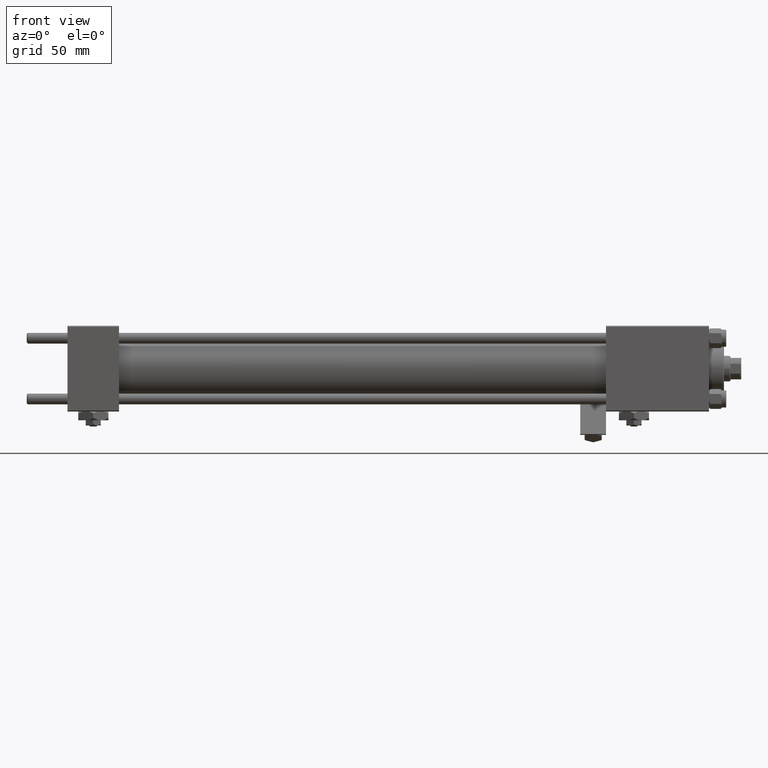
[diagram: clean part render]
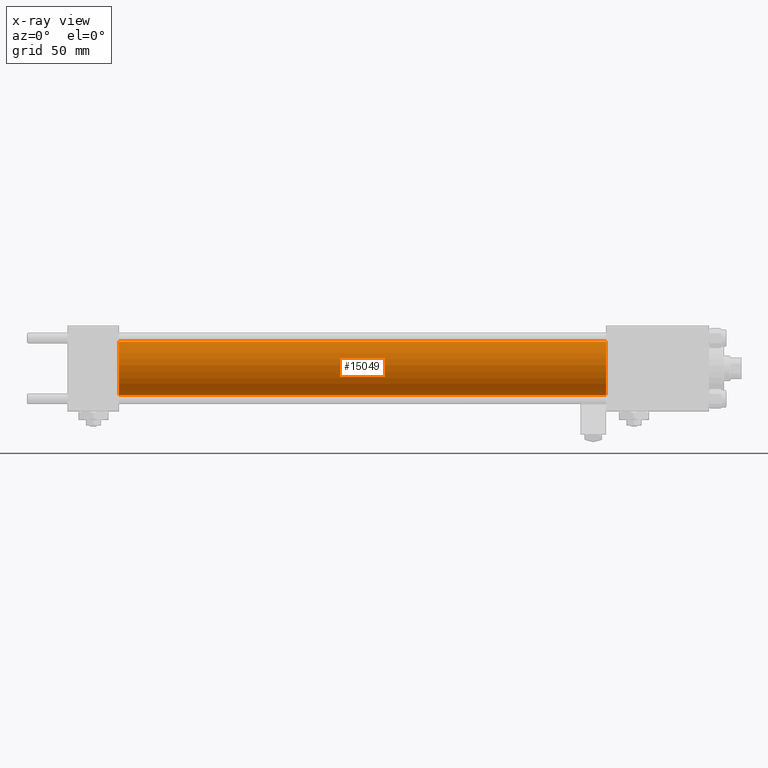
[diagram: x-ray — body ghosted, one internal face saturated and labeled with its STEP entity id]
A machine part, front view, then the same camera in x-ray: the body is ghosted and one INTERNAL B-rep face — a face not visible from any outside direction — is saturated and labeled: STEP entity #15049.
In plain terms, the highlighted cylindrical surface (edge-blend (fillet) strip) has radius 12.5 mm, axis along (-1, -0, -0).
Its self-contained STEP definition (entity closure, byte-faithful):
#257 = CARTESIAN_POINT ( 'NONE',  ( 24.00000000000000000, 0.000000000000000000, 12.49999999999999645 ) ) ;
#767 = VERTEX_POINT ( 'NONE', #39006 ) ;
#988 = DIRECTION ( 'NONE',  ( 0.000000000000000000, 0.000000000000000000, -1.000000000000000000 ) ) ;
#1844 = CARTESIAN_POINT ( 'NONE',  ( 251.0000000000000000, 0.000000000000000000, 12.49999999999999645 ) ) ;
#3488 = AXIS2_PLACEMENT_3D ( 'NONE', #34740, #39013, #42213 ) ;
#3849 = ORIENTED_EDGE ( 'NONE', *, *, #31749, .F. ) ;
#3994 = CARTESIAN_POINT ( 'NONE',  ( 251.0000000000000000, 0.000000000000000000, 0.000000000000000000 ) ) ;
#4888 = VERTEX_POINT ( 'NONE', #257 ) ;
#6027 = DIRECTION ( 'NONE',  ( -1.000000000000000000, -0.000000000000000000, -0.000000000000000000 ) ) ;
#6335 = EDGE_LOOP ( 'NONE', ( #12215, #22046, #3849, #14039 ) ) ;
#8263 = DIRECTION ( 'NONE',  ( -1.000000000000000000, -0.000000000000000000, -0.000000000000000000 ) ) ;
#8997 = CARTESIAN_POINT ( 'NONE',  ( 251.0000000000000000, 0.000000000000000000, 0.000000000000000000 ) ) ;
#12215 = ORIENTED_EDGE ( 'NONE', *, *, #18240, .T. ) ;
#14039 = ORIENTED_EDGE ( 'NONE', *, *, #52237, .F. ) ;
#15049 = ADVANCED_FACE ( 'NONE', ( #40570 ), #44846, .F. ) ;
#16541 = DIRECTION ( 'NONE',  ( 0.000000000000000000, 0.000000000000000000, 1.000000000000000000 ) ) ;
#18240 = EDGE_CURVE ( 'NONE', #19693, #18709, #34159, .T. ) ;
#18456 = VECTOR ( 'NONE', #6027, 1000.000000000000000 ) ;
#18709 = VERTEX_POINT ( 'NONE', #27701 ) ;
#18858 = CIRCLE ( 'NONE', #3488, 12.49999999999999645 ) ;
#19693 = VERTEX_POINT ( 'NONE', #1844 ) ;
#20770 = DIRECTION ( 'NONE',  ( 1.000000000000000000, 0.000000000000000000, 0.000000000000000000 ) ) ;
#21504 = VECTOR ( 'NONE', #52671, 1000.000000000000000 ) ;
#22046 = ORIENTED_EDGE ( 'NONE', *, *, #22759, .T. ) ;
#22759 = EDGE_CURVE ( 'NONE', #18709, #767, #28081, .T. ) ;
#27701 = CARTESIAN_POINT ( 'NONE',  ( 251.0000000000000000, 1.530808498934190732E-15, -12.49999999999999645 ) ) ;
#28081 = LINE ( 'NONE', #44646, #21504 ) ;
#31749 = EDGE_CURVE ( 'NONE', #4888, #767, #18858, .T. ) ;
#34159 = CIRCLE ( 'NONE', #48637, 12.49999999999999645 ) ;
#34740 = CARTESIAN_POINT ( 'NONE',  ( 24.00000000000000000, 0.000000000000000000, 0.000000000000000000 ) ) ;
#36599 = AXIS2_PLACEMENT_3D ( 'NONE', #3994, #8263, #16541 ) ;
#39006 = CARTESIAN_POINT ( 'NONE',  ( 24.00000000000000000, 1.530808498934190732E-15, -12.49999999999999645 ) ) ;
#39013 = DIRECTION ( 'NONE',  ( 1.000000000000000000, 0.000000000000000000, 0.000000000000000000 ) ) ;
#40570 = FACE_OUTER_BOUND ( 'NONE', #6335, .T. ) ;
#42213 = DIRECTION ( 'NONE',  ( 0.000000000000000000, 0.000000000000000000, -1.000000000000000000 ) ) ;
#42601 = LINE ( 'NONE', #47139, #18456 ) ;
#44646 = CARTESIAN_POINT ( 'NONE',  ( 251.0000000000000000, 1.530808498934190732E-15, -12.49999999999999645 ) ) ;
#44846 = CYLINDRICAL_SURFACE ( 'NONE', #36599, 12.49999999999999645 ) ;
#47139 = CARTESIAN_POINT ( 'NONE',  ( 251.0000000000000000, 0.000000000000000000, 12.49999999999999645 ) ) ;
#48637 = AXIS2_PLACEMENT_3D ( 'NONE', #8997, #20770, #988 ) ;
#52237 = EDGE_CURVE ( 'NONE', #19693, #4888, #42601, .T. ) ;
#52671 = DIRECTION ( 'NONE',  ( -1.000000000000000000, -0.000000000000000000, -0.000000000000000000 ) ) ;